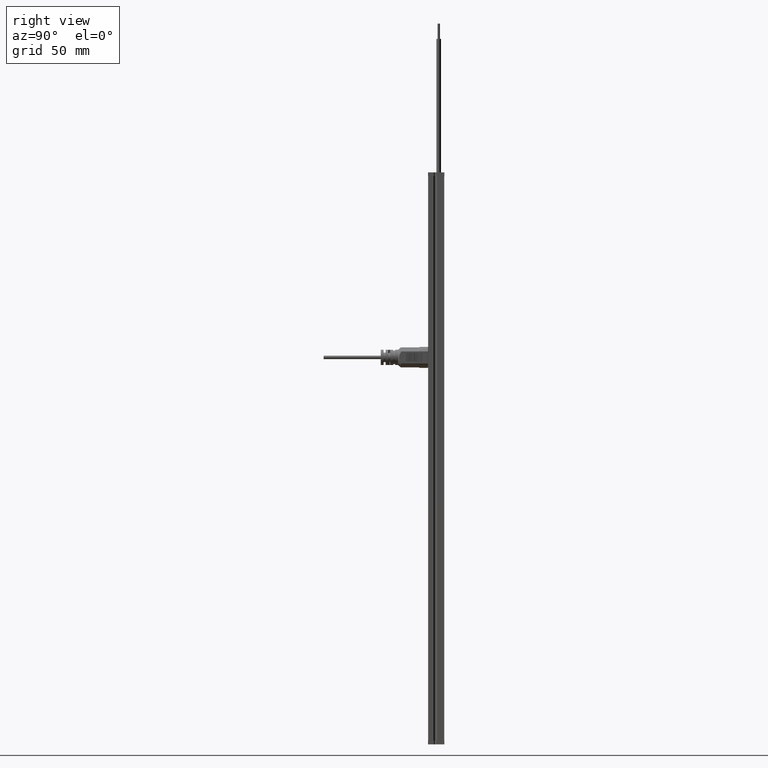
[diagram: clean part render]
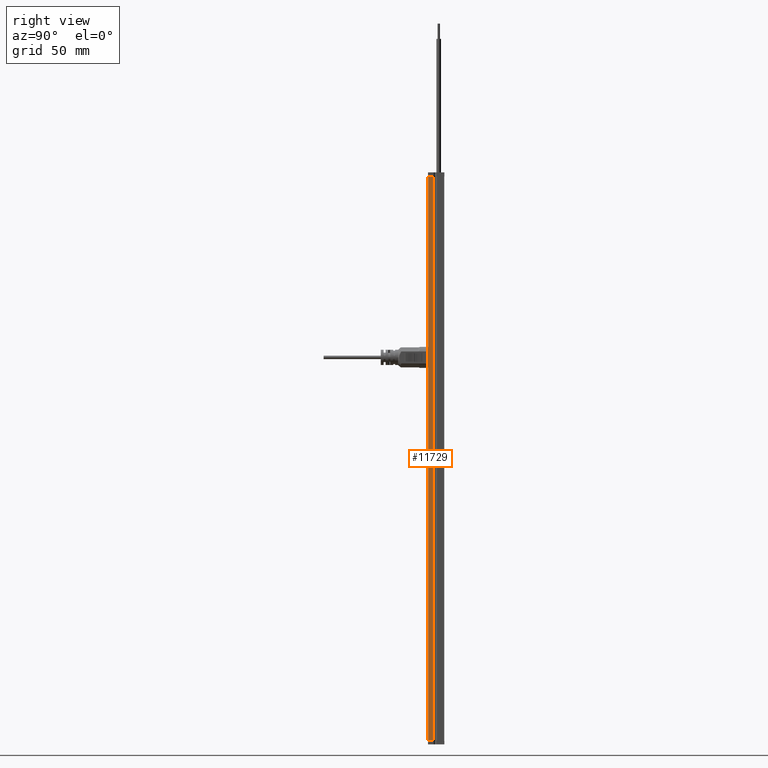
[diagram: same view with one face highlighted and labeled with its STEP entity id]
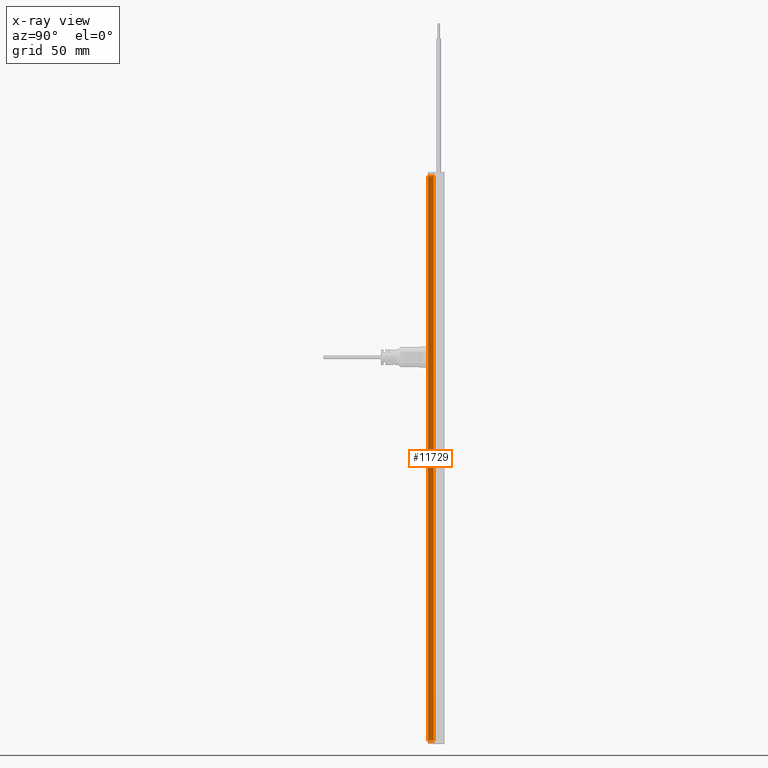
[diagram: x-ray of the same camera — body ghosted, the highlighted face saturated]
A machine part, right view. The second image highlights one B-rep face of the part: STEP entity #11729.
The next image is the same camera in x-ray: the body ghosted, the highlighted face saturated — about 0% of this face is hidden behind the body in this view.
In plain terms, the highlighted planar face has unit normal (-1, -0, 0).
Its self-contained STEP definition (entity closure, byte-faithful):
#63 = VERTEX_POINT ( 'NONE', #3130 ) ;
#914 = LINE ( 'NONE', #12496, #13243 ) ;
#938 = DIRECTION ( 'NONE',  ( 0.000000000000000000, -1.000000000000000000, 0.000000000000000000 ) ) ;
#943 = VECTOR ( 'NONE', #938, 1000.000000000000000 ) ;
#1892 = CARTESIAN_POINT ( 'NONE',  ( -7.700000000000001954, 8.500000000000000000, 148.0000000000000000 ) ) ;
#2050 = VECTOR ( 'NONE', #9705, 1000.000000000000000 ) ;
#2997 = DIRECTION ( 'NONE',  ( 0.000000000000000000, -1.000000000000000000, 0.000000000000000000 ) ) ;
#3086 = ORIENTED_EDGE ( 'NONE', *, *, #11677, .F. ) ;
#3130 = CARTESIAN_POINT ( 'NONE',  ( -7.700000000000001954, 8.500000000000000000, -148.0000000000000000 ) ) ;
#3912 = CARTESIAN_POINT ( 'NONE',  ( -7.700000000000001954, 8.500000000000000000, 148.0000000000000000 ) ) ;
#4016 = ORIENTED_EDGE ( 'NONE', *, *, #9107, .T. ) ;
#4442 = AXIS2_PLACEMENT_3D ( 'NONE', #10626, #4531, #5759 ) ;
#4531 = DIRECTION ( 'NONE',  ( 1.000000000000000000, 0.000000000000000000, -0.000000000000000000 ) ) ;
#5285 = CARTESIAN_POINT ( 'NONE',  ( -7.700000000000001954, 5.599999999999999645, -148.0000000000000000 ) ) ;
#5387 = LINE ( 'NONE', #6296, #2050 ) ;
#5759 = DIRECTION ( 'NONE',  ( -0.000000000000000000, 0.000000000000000000, -1.000000000000000000 ) ) ;
#6296 = CARTESIAN_POINT ( 'NONE',  ( -7.700000000000001954, 5.599999999999999645, 148.0000000000000000 ) ) ;
#6392 = LINE ( 'NONE', #15394, #943 ) ;
#6489 = EDGE_LOOP ( 'NONE', ( #4016, #13267, #3086, #7972 ) ) ;
#6548 = EDGE_CURVE ( 'NONE', #13135, #63, #12909, .T. ) ;
#7972 = ORIENTED_EDGE ( 'NONE', *, *, #6548, .T. ) ;
#9107 = EDGE_CURVE ( 'NONE', #63, #14988, #914, .T. ) ;
#9705 = DIRECTION ( 'NONE',  ( -0.000000000000000000, -0.000000000000000000, -1.000000000000000000 ) ) ;
#10521 = PLANE ( 'NONE',  #4442 ) ;
#10626 = CARTESIAN_POINT ( 'NONE',  ( -7.700000000000001954, 8.500000000000000000, 148.0000000000000000 ) ) ;
#11677 = EDGE_CURVE ( 'NONE', #13135, #13593, #6392, .T. ) ;
#11729 = ADVANCED_FACE ( 'NONE', ( #13276 ), #10521, .F. ) ;
#12269 = DIRECTION ( 'NONE',  ( -0.000000000000000000, -0.000000000000000000, -1.000000000000000000 ) ) ;
#12351 = CARTESIAN_POINT ( 'NONE',  ( -7.700000000000001954, 5.599999999999999645, 148.0000000000000000 ) ) ;
#12496 = CARTESIAN_POINT ( 'NONE',  ( -7.700000000000001954, 8.500000000000000000, -148.0000000000000000 ) ) ;
#12555 = VECTOR ( 'NONE', #12269, 1000.000000000000000 ) ;
#12909 = LINE ( 'NONE', #3912, #12555 ) ;
#12942 = EDGE_CURVE ( 'NONE', #13593, #14988, #5387, .T. ) ;
#13135 = VERTEX_POINT ( 'NONE', #1892 ) ;
#13243 = VECTOR ( 'NONE', #2997, 1000.000000000000000 ) ;
#13267 = ORIENTED_EDGE ( 'NONE', *, *, #12942, .F. ) ;
#13276 = FACE_OUTER_BOUND ( 'NONE', #6489, .T. ) ;
#13593 = VERTEX_POINT ( 'NONE', #12351 ) ;
#14988 = VERTEX_POINT ( 'NONE', #5285 ) ;
#15394 = CARTESIAN_POINT ( 'NONE',  ( -7.700000000000001954, 8.500000000000000000, 148.0000000000000000 ) ) ;